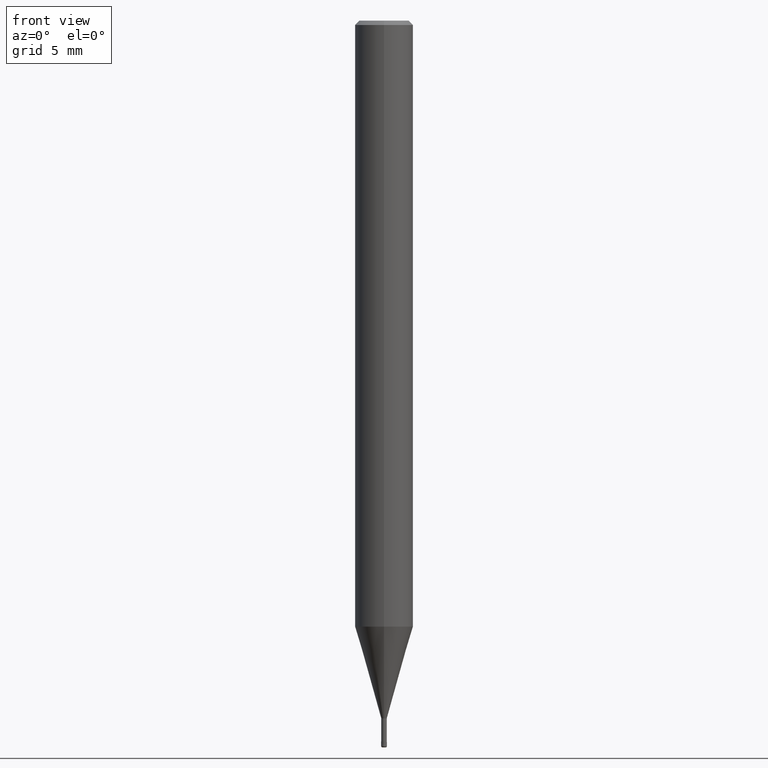
[diagram: clean part render]
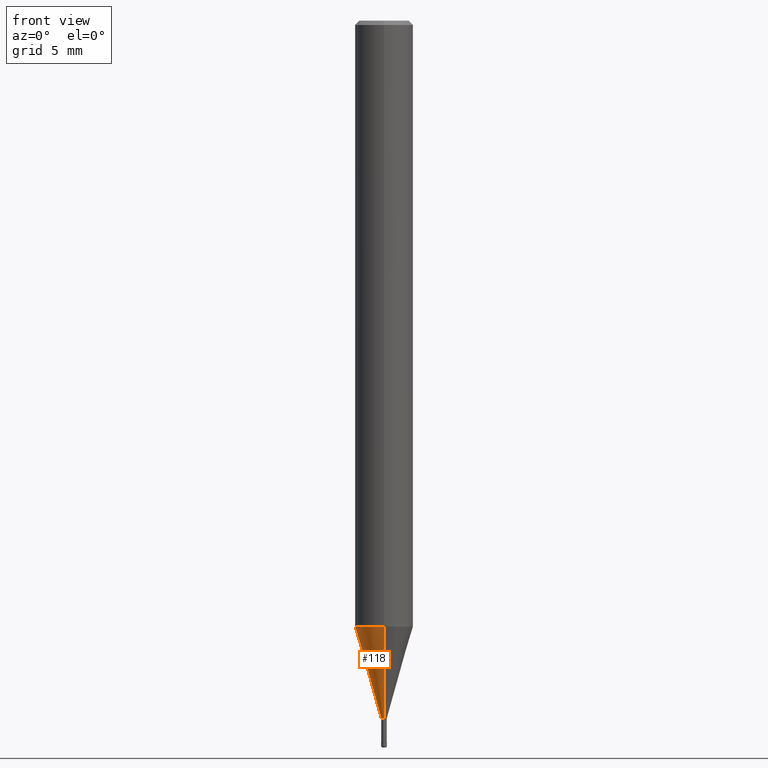
[diagram: same view with one face highlighted and labeled with its STEP entity id]
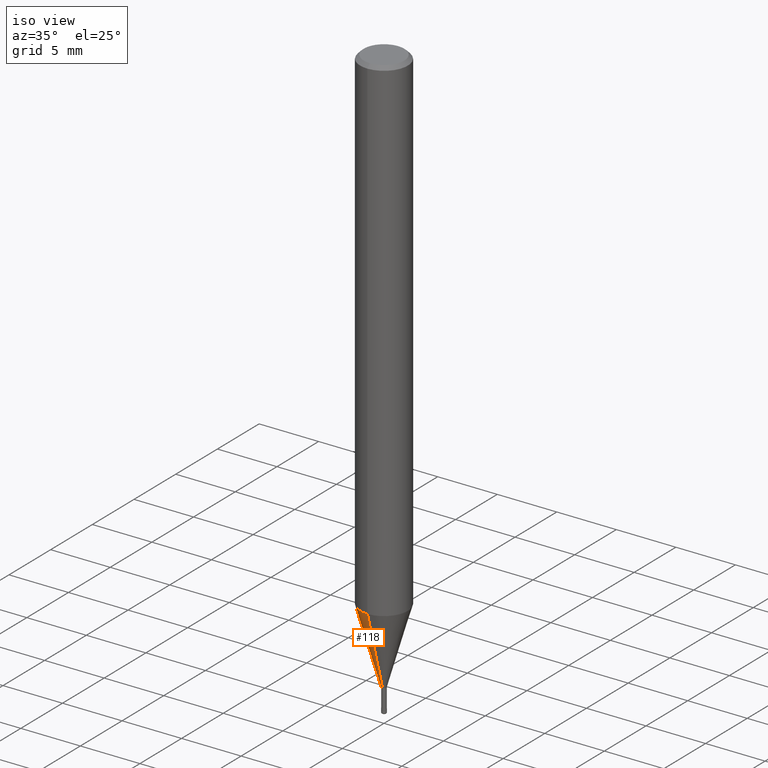
[diagram: same view with one face highlighted and labeled with its STEP entity id]
A machine part, front view. The second image highlights one B-rep face of the part: STEP entity #118.
A second angle (iso view) of the same face is appended — the face is thin or edge-on in the first view.
In plain terms, the highlighted conical surface has half-angle 16.001 deg.
Its self-contained STEP definition (entity closure, byte-faithful):
#102=VERTEX_POINT('',#255);
#116=VERTEX_POINT('',#271);
#118=ADVANCED_FACE('',(#273),#274,.T.);
#132=EDGE_CURVE('',#218,#116,#288,.T.);
#136=EDGE_CURVE('',#178,#218,#292,.T.);
#156=EDGE_CURVE('',#102,#116,#316,.T.);
#178=VERTEX_POINT('',#340);
#206=EDGE_CURVE('',#102,#178,#373,.T.);
#218=VERTEX_POINT('',#388);
#255=CARTESIAN_POINT('',(2.3261397690856E-017,-0.18995,-48.0));
#271=CARTESIAN_POINT('',(0.0,0.18995,-48.0));
#273=FACE_OUTER_BOUND('',#439,.T.);
#274=CONICAL_SURFACE('',#440,1.09495,0.279261921280279);
#288=LINE('',#461,#462);
#292=CIRCLE('',#469,1.99995);
#316=CIRCLE('',#500,0.18995);
#340=CARTESIAN_POINT('',(2.44915147732706E-016,-1.99995,-41.688));
#373=LINE('',#569,#570);
#388=CARTESIAN_POINT('',(0.0,1.99995,-41.688));
#439=EDGE_LOOP('',(#627,#628,#629,#630));
#440=AXIS2_PLACEMENT_3D('',#631,#632,#633);
#461=CARTESIAN_POINT('',(-1.34088272711781E-016,1.09495,-44.844));
#462=VECTOR('',#642,1.0);
#469=AXIS2_PLACEMENT_3D('',#644,#645,#646);
#500=AXIS2_PLACEMENT_3D('',#685,#686,#687);
#569=CARTESIAN_POINT('',(1.34088272711781E-016,-1.09495,-44.844));
#570=VECTOR('',#767,1.0);
#627=ORIENTED_EDGE('',*,*,#132,.T.);
#628=ORIENTED_EDGE('',*,*,#156,.F.);
#629=ORIENTED_EDGE('',*,*,#206,.T.);
#630=ORIENTED_EDGE('',*,*,#136,.T.);
#631=CARTESIAN_POINT('',(0.0,0.0,-44.844));
#632=DIRECTION('',(-0.0,-0.0,1.0));
#633=DIRECTION('',(0.0,1.0,0.0));
#642=DIRECTION('',(3.37558135426109E-017,-0.275646238787252,-0.961259148743169));
#644=CARTESIAN_POINT('',(0.0,0.0,-41.688));
#645=DIRECTION('',(0.0,0.0,-1.0));
#646=DIRECTION('',(0.0,1.0,0.0));
#685=CARTESIAN_POINT('',(0.0,0.0,-48.0));
#686=DIRECTION('',(0.0,0.0,-1.0));
#687=DIRECTION('',(0.0,1.0,0.0));
#767=DIRECTION('',(3.37558135426109E-017,-0.275646238787252,0.961259148743169));